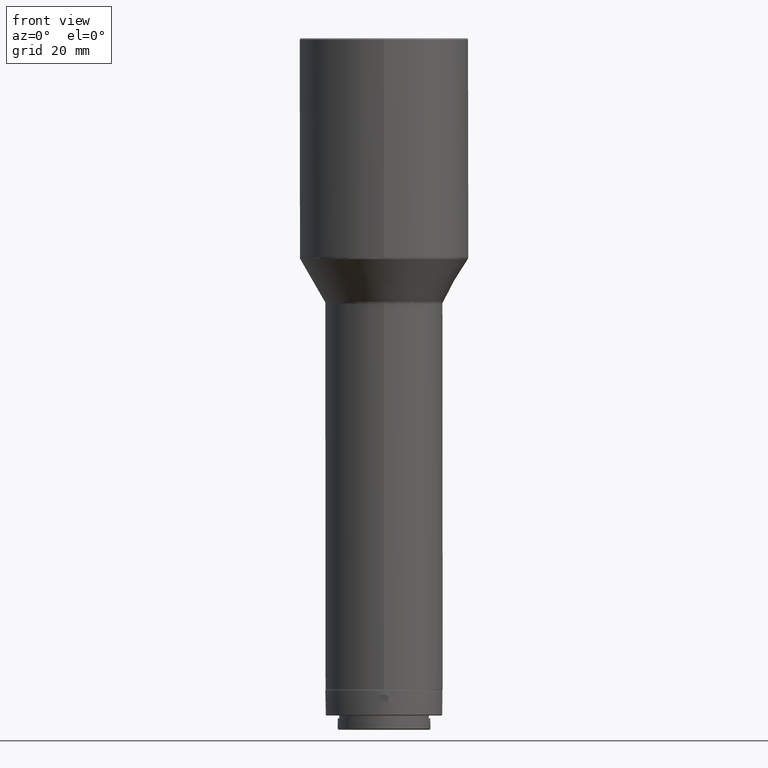
[diagram: clean part render]
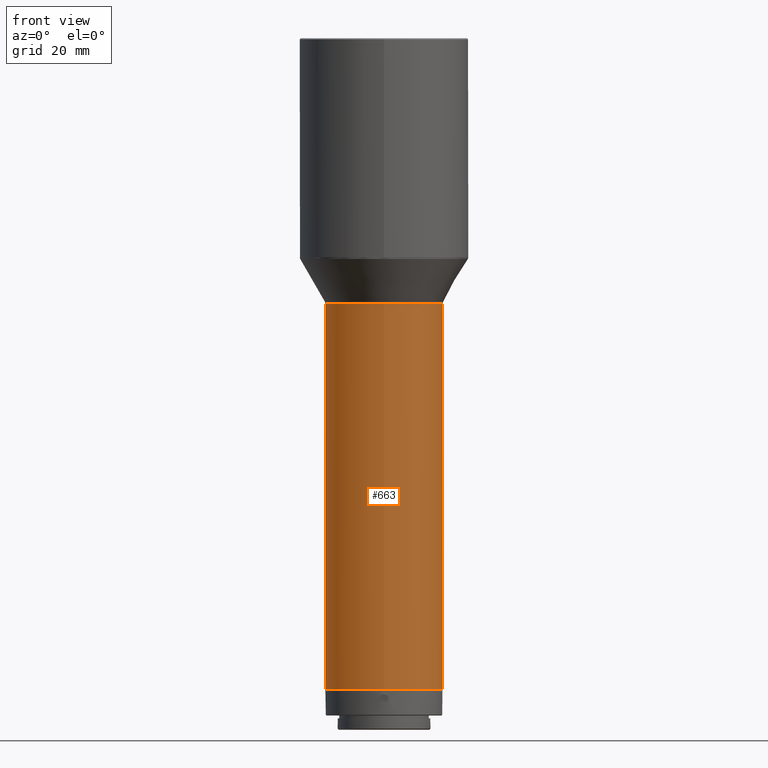
[diagram: same view with one face highlighted and labeled with its STEP entity id]
A machine part, front view. The second image highlights one B-rep face of the part: STEP entity #663.
In plain terms, the highlighted cylindrical surface (bore or boss wall) has radius 16 mm, axis along (0, 0, 1).
Its self-contained STEP definition (entity closure, byte-faithful):
#57 = EDGE_CURVE ( 'NONE', #779, #779, #651, .T. ) ;
#119 = EDGE_LOOP ( 'NONE', ( #458 ) ) ;
#134 = ORIENTED_EDGE ( 'NONE', *, *, #568, .T. ) ;
#225 = EDGE_LOOP ( 'NONE', ( #134 ) ) ;
#291 = CARTESIAN_POINT ( 'NONE',  ( -6.639475585231606770E-15, -2.180275915346750069E-14, -847.7036269999998694 ) ) ;
#362 = CIRCLE ( 'NONE', #1065, 16.00000000000000000 ) ;
#380 = FACE_OUTER_BOUND ( 'NONE', #119, .T. ) ;
#387 = DIRECTION ( 'NONE',  ( 5.605564082487980297E-34, 2.334120334303111441E-17, 1.000000000000000000 ) ) ;
#390 = CARTESIAN_POINT ( 'NONE',  ( -6.639475585231606770E-15, -1.765494266086634835E-14, -669.9999999999998863 ) ) ;
#458 = ORIENTED_EDGE ( 'NONE', *, *, #57, .T. ) ;
#503 = DIRECTION ( 'NONE',  ( 0.000000000000000000, -1.000000000000000000, 0.000000000000000000 ) ) ;
#539 = CYLINDRICAL_SURFACE ( 'NONE', #666, 16.00000000000000000 ) ;
#568 = EDGE_CURVE ( 'NONE', #674, #674, #362, .T. ) ;
#610 = DIRECTION ( 'NONE',  ( 0.000000000000000000, -1.000000000000000000, 0.000000000000000000 ) ) ;
#651 = CIRCLE ( 'NONE', #990, 16.00000000000000000 ) ;
#663 = ADVANCED_FACE ( 'NONE', ( #380, #790 ), #539, .T. ) ;
#666 = AXIS2_PLACEMENT_3D ( 'NONE', #390, #950, #945 ) ;
#674 = VERTEX_POINT ( 'NONE', #896 ) ;
#687 = DIRECTION ( 'NONE',  ( -5.605564082487980297E-34, -2.334120334303111441E-17, -1.000000000000000000 ) ) ;
#779 = VERTEX_POINT ( 'NONE', #977 ) ;
#790 = FACE_OUTER_BOUND ( 'NONE', #225, .T. ) ;
#896 = CARTESIAN_POINT ( 'NONE',  ( -6.639475585231606770E-15, -16.00000000000002132, -742.3923048454130367 ) ) ;
#909 = CARTESIAN_POINT ( 'NONE',  ( -6.639475585231606770E-15, -1.934466616873383125E-14, -742.3923048454130367 ) ) ;
#945 = DIRECTION ( 'NONE',  ( 0.000000000000000000, -1.000000000000000000, 0.000000000000000000 ) ) ;
#950 = DIRECTION ( 'NONE',  ( 5.605564082487980297E-34, 2.334120334303111441E-17, 1.000000000000000000 ) ) ;
#977 = CARTESIAN_POINT ( 'NONE',  ( -6.639475585231606770E-15, -16.00000000000002132, -847.7036269999998694 ) ) ;
#990 = AXIS2_PLACEMENT_3D ( 'NONE', #291, #387, #610 ) ;
#1065 = AXIS2_PLACEMENT_3D ( 'NONE', #909, #687, #503 ) ;